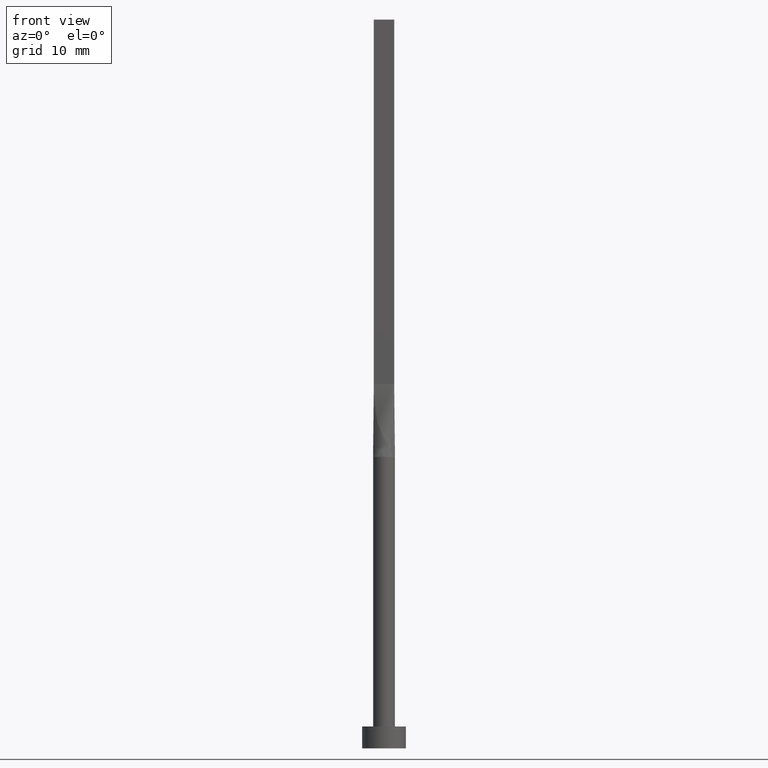
[diagram: clean part render]
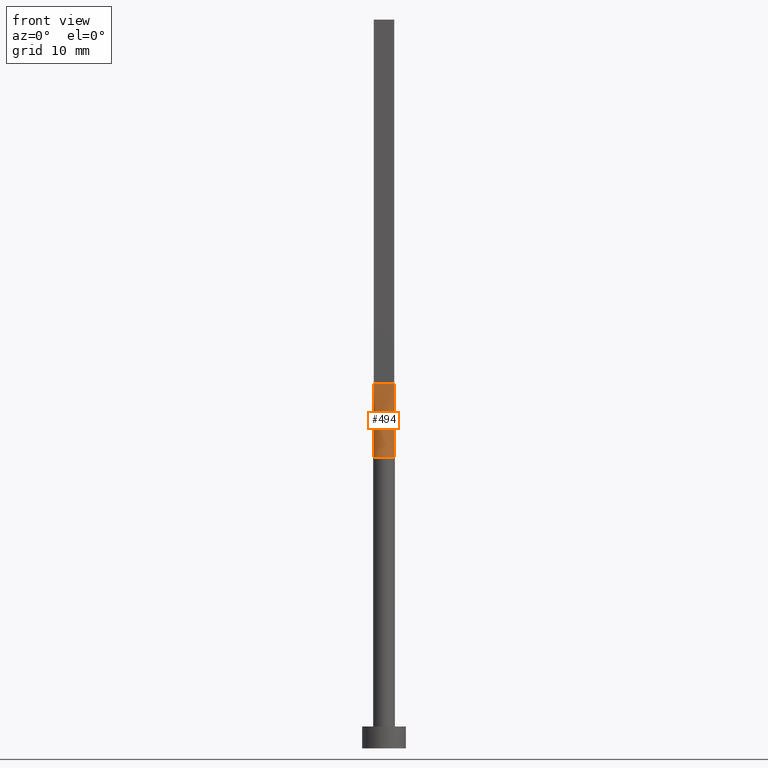
[diagram: same view with one face highlighted and labeled with its STEP entity id]
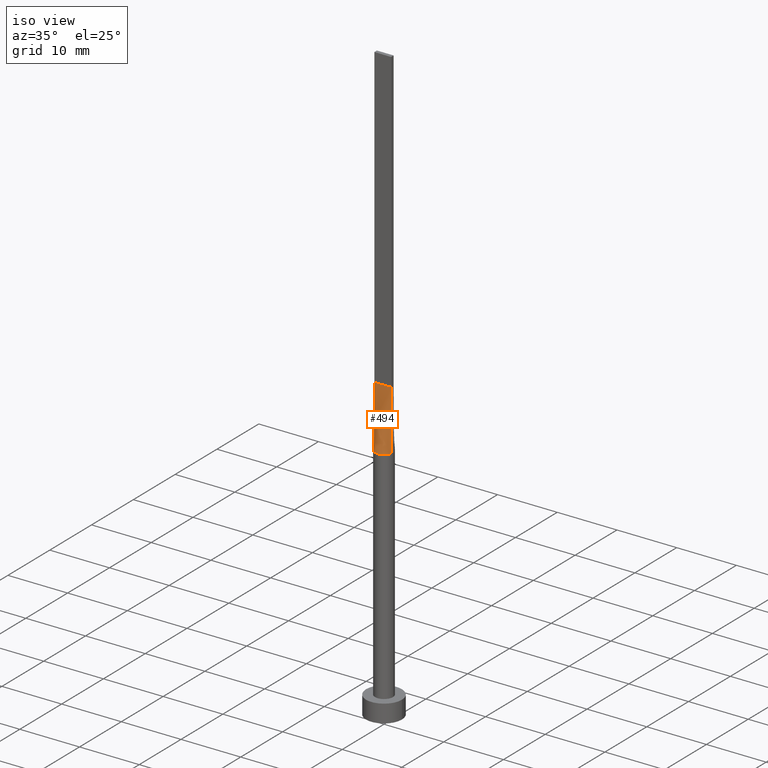
[diagram: same view with one face highlighted and labeled with its STEP entity id]
A machine part, front view. The second image highlights one B-rep face of the part: STEP entity #494.
A second angle (iso view) of the same face is appended — the face is thin or edge-on in the first view.
In plain terms, the highlighted face is a freeform B-spline surface patch.
Its self-contained STEP definition (entity closure, byte-faithful):
#9 = CARTESIAN_POINT ( 'NONE',  ( 1.466854622690809462, -0.3143260906982852099, 40.00000000000000000 ) ) ;
#11 = CARTESIAN_POINT ( 'NONE',  ( -1.167251067653077845, -0.9579686032593084377, 40.00000000000000711 ) ) ;
#12 = ORIENTED_EDGE ( 'NONE', *, *, #298, .T. ) ;
#14 = DIRECTION ( 'NONE',  ( 1.000000000000000000, -5.808225924029488744E-17, 0.000000000000000000 ) ) ;
#15 = CARTESIAN_POINT ( 'NONE',  ( -0.7614511870148455985, -1.306864626778803995, 40.00000000000000000 ) ) ;
#21 = CARTESIAN_POINT ( 'NONE',  ( -0.2333333333333330595, -0.2999999999999997113, 50.00000000000000711 ) ) ;
#22 = CARTESIAN_POINT ( 'NONE',  ( 0.8166666666666669849, -0.2999999999999997113, 50.00000000000000000 ) ) ;
#47 = CARTESIAN_POINT ( 'NONE',  ( -1.399999999999999911, -0.2999999999999996003, 50.00000000000000000 ) ) ;
#53 = CARTESIAN_POINT ( 'NONE',  ( -0.5833333333333331483, -0.2999999999999996558, 50.00000000000000711 ) ) ;
#59 = CARTESIAN_POINT ( 'NONE',  ( -0.9173979595380682417, -1.199399801402030397, 40.00000000000000711 ) ) ;
#61 = FACE_OUTER_BOUND ( 'NONE', #182, .T. ) ;
#62 = ORIENTED_EDGE ( 'NONE', *, *, #259, .T. ) ;
#72 = ORIENTED_EDGE ( 'NONE', *, *, #547, .F. ) ;
#76 = CARTESIAN_POINT ( 'NONE',  ( 1.433351810558057160, -0.3071468165481548440, 45.00000000000000000 ) ) ;
#101 = CARTESIAN_POINT ( 'NONE',  ( -1.466837926445876628, -0.3143226152917824034, 40.00000000000000000 ) ) ;
#106 = CARTESIAN_POINT ( 'NONE',  ( 0.9333333333333337922, -0.2999999999999997113, 50.00000000000000000 ) ) ;
#140 = AXIS2_PLACEMENT_3D ( 'NONE', #457, #242, #204 ) ;
#159 = CARTESIAN_POINT ( 'NONE',  ( 1.466703621116114409, -0.3142936330963098657, 40.00000000000000000 ) ) ;
#161 = CARTESIAN_POINT ( 'NONE',  ( 1.261673556793541762, -0.8246322331683848539, 40.00000000000000000 ) ) ;
#164 = CARTESIAN_POINT ( 'NONE',  ( 0.7614511870148451544, -1.306864626778804439, 39.99999999999998579 ) ) ;
#178 = DIRECTION ( 'NONE',  ( -0.006670206908340743472, 0.001429330051787287706, 0.9999767324070110153 ) ) ;
#182 = EDGE_LOOP ( 'NONE', ( #62, #12, #72, #575 ) ) ;
#199 = CARTESIAN_POINT ( 'NONE',  ( -0.4035854070682473038, -1.457676878506884988, 40.00000000000000000 ) ) ;
#202 = CARTESIAN_POINT ( 'NONE',  ( 0.5833333333333337034, -0.2999999999999997113, 50.00000000000000000 ) ) ;
#204 = DIRECTION ( 'NONE',  ( 1.000000000000000000, 0.000000000000000000, 0.000000000000000000 ) ) ;
#206 = CARTESIAN_POINT ( 'NONE',  ( 1.398339371956842880, -0.5625704264602661153, 40.00000000000000000 ) ) ;
#208 = CARTESIAN_POINT ( 'NONE',  ( -1.441093865018553632, -0.4338058282182608583, 39.99999999999999289 ) ) ;
#242 = DIRECTION ( 'NONE',  ( 0.000000000000000000, 0.000000000000000000, 1.000000000000000000 ) ) ;
#243 = CARTESIAN_POINT ( 'NONE',  ( -1.261673556793542206, -0.8246322331683838547, 39.99999999999998579 ) ) ;
#249 = CARTESIAN_POINT ( 'NONE',  ( 0.2021039475585061640, -1.499999999999999778, 40.00000000000000000 ) ) ;
#251 = VERTEX_POINT ( 'NONE', #9 ) ;
#259 = EDGE_CURVE ( 'NONE', #516, #251, #453, .T. ) ;
#269 = EDGE_CURVE ( 'NONE', #545, #516, #377, .T. ) ;
#284 = CARTESIAN_POINT ( 'NONE',  ( 1.441093865018553410, -0.4338058282182614689, 40.00000000000000000 ) ) ;
#286 = LINE ( 'NONE', #47, #506 ) ;
#287 = CARTESIAN_POINT ( 'NONE',  ( -0.4666666666666664520, -0.2999999999999997113, 50.00000000000000711 ) ) ;
#298 = EDGE_CURVE ( 'NONE', #251, #483, #484, .T. ) ;
#322 = CARTESIAN_POINT ( 'NONE',  ( -1.399999999999999911, -0.2999999999999996003, 50.00000000000000000 ) ) ;
#327 = CARTESIAN_POINT ( 'NONE',  ( 0.1166666666666669600, -0.2999999999999997113, 50.00000000000000711 ) ) ;
#332 = CARTESIAN_POINT ( 'NONE',  ( 1.399999999999999911, -0.2999999999999997669, 50.00000000000000000 ) ) ;
#335 = DIRECTION ( 'NONE',  ( -0.006670206908340743472, -0.001429330051787282068, -0.9999767324070110153 ) ) ;
#336 = CARTESIAN_POINT ( 'NONE',  ( -0.2021039475585066081, -1.499999999999999778, 40.00000000000000000 ) ) ;
#338 = CARTESIAN_POINT ( 'NONE',  ( 1.167251067653077401, -0.9579686032593089928, 40.00000000000000711 ) ) ;
#370 = CARTESIAN_POINT ( 'NONE',  ( -1.398339371956842880, -0.5625704264602655602, 40.00000000000000711 ) ) ;
#374 = CARTESIAN_POINT ( 'NONE',  ( 0.2333333333333336701, -0.2999999999999997113, 50.00000000000000000 ) ) ;
#377 = LINE ( 'NONE', #546, #418 ) ;
#380 = CARTESIAN_POINT ( 'NONE',  ( 1.283333333333333437, -0.2999999999999997113, 50.00000000000000000 ) ) ;
#382 = CARTESIAN_POINT ( 'NONE',  ( 1.166666666666666963, -0.2999999999999997113, 50.00000000000000000 ) ) ;
#384 = CARTESIAN_POINT ( 'NONE',  ( -1.466703621116114409, -0.3142936330963096436, 40.00000000000000000 ) ) ;
#412 = CARTESIAN_POINT ( 'NONE',  ( -1.399999999999999911, -0.2999999999999996003, 50.00000000000000000 ) ) ;
#416 = CARTESIAN_POINT ( 'NONE',  ( -0.1166666666666663910, -0.2999999999999997669, 50.00000000000000711 ) ) ;
#418 = VECTOR ( 'NONE', #335, 1000.000000000000114 ) ;
#422 = CARTESIAN_POINT ( 'NONE',  ( 1.399999999999999911, -0.2999999999999997669, 50.00000000000000000 ) ) ;
#425 = CARTESIAN_POINT ( 'NONE',  ( 0.4035854070682468042, -1.457676878506885210, 40.00000000000000000 ) ) ;
#445 = B_SPLINE_SURFACE_WITH_KNOTS ( 'NONE', 3, 1, ( 
 ( #384, #412 ),
 ( #208, #459 ),
 ( #370, #561 ),
 ( #243, #555 ),
 ( #11, #515 ),
 ( #59, #53 ),
 ( #15, #287 ),
 ( #199, #21 ),
 ( #336, #416 ),
 ( #249, #327 ),
 ( #425, #374 ),
 ( #164, #552 ),
 ( #504, #202 ),
 ( #338, #22 ),
 ( #161, #106 ),
 ( #206, #382 ),
 ( #284, #380 ),
 ( #159, #332 ) ),
 .UNSPECIFIED., .F., .F., .F.,
 ( 4, 2, 2, 2, 2, 2, 2, 2, 4 ),
 ( 2, 2 ),
 ( 0.000000000000000000, 0.1250000000000000000, 0.2500000000000000000, 0.3750000000000000000, 0.5000000000000000000, 0.6250000000000000000, 0.7500000000000000000, 0.8750000000000000000, 1.000000000000000000 ),
 ( 0.000000000000000000, 1.000000000000000000 ),
 .UNSPECIFIED. ) ;
#453 = CIRCLE ( 'NONE', #140, 1.500000000000000222 ) ;
#457 = CARTESIAN_POINT ( 'NONE',  ( 0.000000000000000000, 0.000000000000000000, 40.00000000000000000 ) ) ;
#459 = CARTESIAN_POINT ( 'NONE',  ( -1.283333333333333215, -0.2999999999999996003, 50.00000000000000000 ) ) ;
#483 = VERTEX_POINT ( 'NONE', #422 ) ;
#484 = LINE ( 'NONE', #76, #535 ) ;
#494 = ADVANCED_FACE ( 'NONE', ( #61 ), #445, .T. ) ;
#504 = CARTESIAN_POINT ( 'NONE',  ( 0.9173979595380676866, -1.199399801402031063, 40.00000000000000711 ) ) ;
#506 = VECTOR ( 'NONE', #14, 1000.000000000000000 ) ;
#515 = CARTESIAN_POINT ( 'NONE',  ( -0.8166666666666665408, -0.2999999999999996003, 50.00000000000000000 ) ) ;
#516 = VERTEX_POINT ( 'NONE', #101 ) ;
#535 = VECTOR ( 'NONE', #178, 1000.000000000000114 ) ;
#545 = VERTEX_POINT ( 'NONE', #322 ) ;
#546 = CARTESIAN_POINT ( 'NONE',  ( -1.433351810558057160, -0.3071468165481546220, 45.00000000000000000 ) ) ;
#547 = EDGE_CURVE ( 'NONE', #545, #483, #286, .T. ) ;
#552 = CARTESIAN_POINT ( 'NONE',  ( 0.4666666666666670071, -0.2999999999999997113, 50.00000000000000000 ) ) ;
#555 = CARTESIAN_POINT ( 'NONE',  ( -0.9333333333333331261, -0.2999999999999996003, 50.00000000000000000 ) ) ;
#561 = CARTESIAN_POINT ( 'NONE',  ( -1.166666666666666519, -0.2999999999999996003, 50.00000000000000000 ) ) ;
#575 = ORIENTED_EDGE ( 'NONE', *, *, #269, .T. ) ;